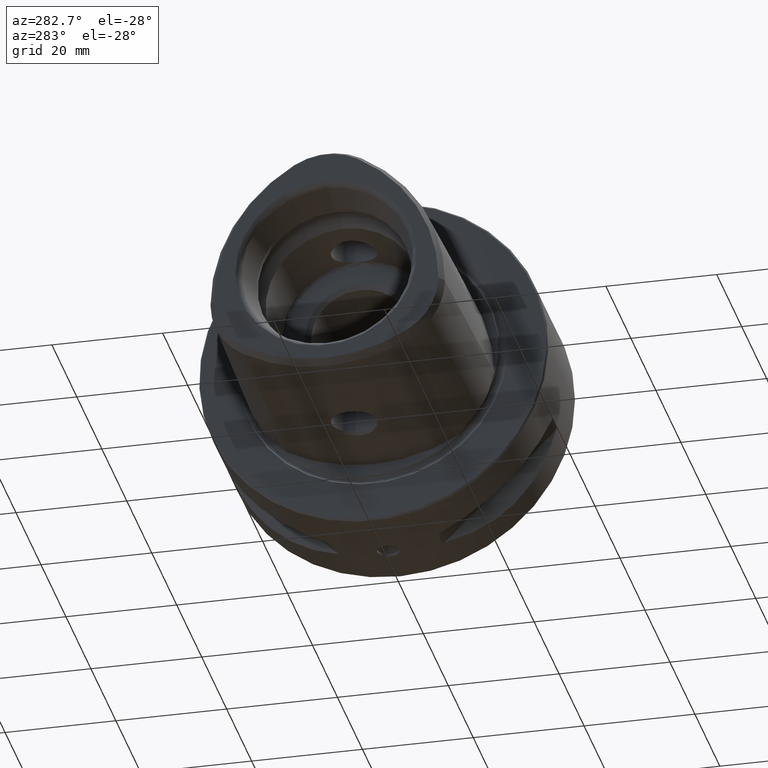
[diagram: clean part render]
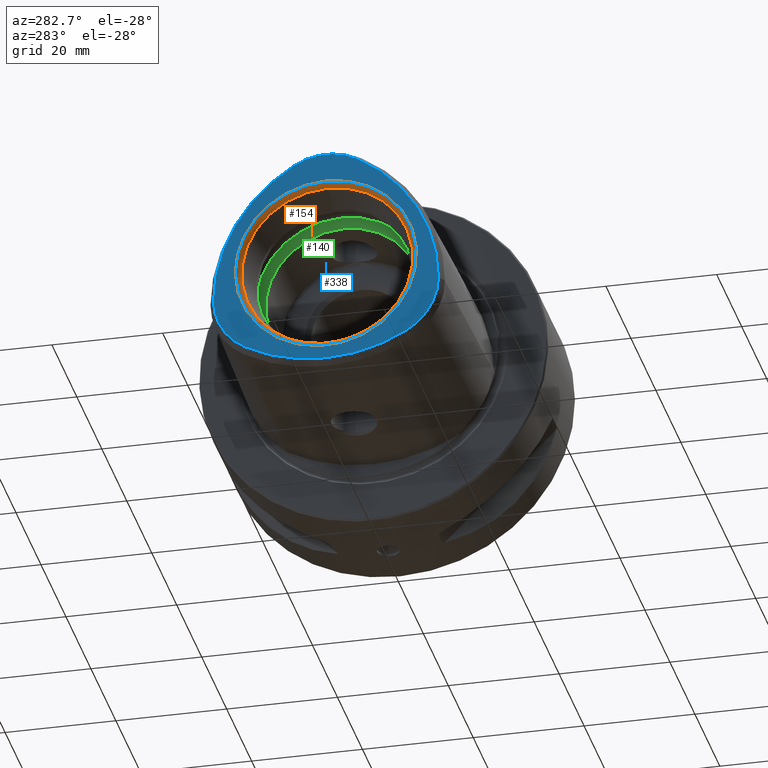
[diagram: same view with three faces highlighted in distinct colors, each labeled with its STEP entity id]
A machine part, auxiliary view with three faces highlighted in distinct colors.
Their STEP definitions:

[orange] entity #154 — the highlighted toroidal blend (fillet) surface has major radius 16.9008 mm and minor (blend) radius 1.5 mm.
#154 = ADVANCED_FACE( '', ( #401, #402 ), #403, .T. );
#401 = FACE_OUTER_BOUND( '', #782, .T. );
#402 = FACE_OUTER_BOUND( '', #783, .T. );
#403 = TOROIDAL_SURFACE( '', #784, 16.9007599187610, 1.50000000000000 );
#782 = EDGE_LOOP( '', ( #1201 ) );
#783 = EDGE_LOOP( '', ( #1202 ) );
#784 = AXIS2_PLACEMENT_3D( '', #1203, #1204, #1205 );
#1201 = ORIENTED_EDGE( '', *, *, #2020, .F. );
#1202 = ORIENTED_EDGE( '', *, *, #2021, .T. );
#1203 = CARTESIAN_POINT( '', ( -36.6000000000000, 0.000000000000000, 0.000000000000000 ) );
#1204 = DIRECTION( '', ( -1.00000000000000, 0.000000000000000, 0.000000000000000 ) );
#1205 = DIRECTION( '', ( 0.000000000000000, 0.000000000000000, 1.00000000000000 ) );
#2020 = EDGE_CURVE( '', #2374, #2374, #2375, .T. );
#2021 = EDGE_CURVE( '', #2376, #2376, #2377, .F. );
#2374 = VERTEX_POINT( '', #2964 );
#2375 = CIRCLE( '', #2965, 15.4518711793273 );
#2376 = VERTEX_POINT( '', #2966 );
#2377 = CIRCLE( '', #2967, 16.3622434380475 );
#2964 = CARTESIAN_POINT( '', ( -36.9882285676538, 0.000000000000000, 15.4518711793273 ) );
#2965 = AXIS2_PLACEMENT_3D( '', #4074, #4075, #4076 );
#2966 = CARTESIAN_POINT( '', ( -38.0000000000000, 16.3622434380475, 0.000000000000000 ) );
#2967 = AXIS2_PLACEMENT_3D( '', #4077, #4078, #4079 );
#4074 = CARTESIAN_POINT( '', ( -36.9882285676538, 0.000000000000000, 0.000000000000000 ) );
#4075 = DIRECTION( '', ( -1.00000000000000, 0.000000000000000, 0.000000000000000 ) );
#4076 = DIRECTION( '', ( 0.000000000000000, 0.000000000000000, 1.00000000000000 ) );
#4077 = CARTESIAN_POINT( '', ( -38.0000000000000, 8.57224447675663E-017, 0.000000000000000 ) );
#4078 = DIRECTION( '', ( 1.00000000000000, -6.12303176911189E-017, 0.000000000000000 ) );
#4079 = DIRECTION( '', ( 6.12303176911189E-017, 1.00000000000000, 0.000000000000000 ) );

[blue] entity #338 — the highlighted planar face has unit normal (-1, 0, 0).
#338 = ADVANCED_FACE( '', ( #722, #723 ), #724, .T. );
#722 = FACE_BOUND( '', #1103, .T. );
#723 = FACE_OUTER_BOUND( '', #1104, .T. );
#724 = PLANE( '', #1105 );
#1103 = EDGE_LOOP( '', ( #1935 ) );
#1104 = EDGE_LOOP( '', ( #1936, #1937, #1938, #1939, #1940, #1941 ) );
#1105 = AXIS2_PLACEMENT_3D( '', #1942, #1943, #1944 );
#1935 = ORIENTED_EDGE( '', *, *, #2021, .F. );
#1936 = ORIENTED_EDGE( '', *, *, #2277, .T. );
#1937 = ORIENTED_EDGE( '', *, *, #2248, .T. );
#1938 = ORIENTED_EDGE( '', *, *, #2029, .T. );
#1939 = ORIENTED_EDGE( '', *, *, #2126, .T. );
#1940 = ORIENTED_EDGE( '', *, *, #1992, .T. );
#1941 = ORIENTED_EDGE( '', *, *, #2267, .T. );
#1942 = CARTESIAN_POINT( '', ( -38.0000000000000, 1.04083408558608E-014, -5.22487113059657 ) );
#1943 = DIRECTION( '', ( -1.00000000000000, 6.12303176911189E-017, 0.000000000000000 ) );
#1944 = DIRECTION( '', ( -6.12303176911189E-017, -1.00000000000000, 0.000000000000000 ) );
#1992 = EDGE_CURVE( '', #2321, #2326, #2328, .T. );
#2021 = EDGE_CURVE( '', #2376, #2376, #2377, .F. );
#2029 = EDGE_CURVE( '', #2382, #2386, #2388, .T. );
#2126 = EDGE_CURVE( '', #2386, #2321, #2536, .T. );
#2248 = EDGE_CURVE( '', #2702, #2382, #2704, .T. );
#2267 = EDGE_CURVE( '', #2326, #2726, #2728, .T. );
#2277 = EDGE_CURVE( '', #2726, #2702, #2738, .T. );
#2321 = VERTEX_POINT( '', #2813 );
#2326 = VERTEX_POINT( '', #2819 );
#2328 = CIRCLE( '', #2822, 11.2442476329409 );
#2376 = VERTEX_POINT( '', #2966 );
#2377 = CIRCLE( '', #2967, 16.3622434380475 );
#2382 = VERTEX_POINT( '', #2972 );
#2386 = VERTEX_POINT( '', #2977 );
#2388 = CIRCLE( '', #2980, 11.2442476329409 );
#2536 = CIRCLE( '', #3425, 29.3437321553266 );
#2702 = VERTEX_POINT( '', #3893 );
#2704 = CIRCLE( '', #3896, 29.3437321553266 );
#2726 = VERTEX_POINT( '', #3987 );
#2728 = CIRCLE( '', #3990, 29.3437321553266 );
#2738 = CIRCLE( '', #4001, 11.2442476329409 );
#2813 = CARTESIAN_POINT( '', ( -38.0000000000000, -5.62212381647047, 20.1875463577625 ) );
#2819 = CARTESIAN_POINT( '', ( -38.0000000000000, 5.62212381647047, 20.1875463577628 ) );
#2822 = AXIS2_PLACEMENT_3D( '', #4039, #4040, #4041 );
#2966 = CARTESIAN_POINT( '', ( -38.0000000000000, 16.3622434380475, 0.000000000000000 ) );
#2967 = AXIS2_PLACEMENT_3D( '', #4077, #4078, #4079 );
#2972 = CARTESIAN_POINT( '', ( -38.0000000000000, -14.6718660776634, -14.9626752271664 ) );
#2977 = CARTESIAN_POINT( '', ( -38.0000000000000, -20.2939898941336, -5.22487113059656 ) );
#2980 = AXIS2_PLACEMENT_3D( '', #4088, #4089, #4090 );
#3425 = AXIS2_PLACEMENT_3D( '', #4183, #4184, #4185 );
#3893 = CARTESIAN_POINT( '', ( -38.0000000000000, 14.6718660776632, -14.9626752271666 ) );
#3896 = AXIS2_PLACEMENT_3D( '', #4309, #4310, #4311 );
#3987 = CARTESIAN_POINT( '', ( -38.0000000000000, 20.2939898941336, -5.22487113059657 ) );
#3990 = AXIS2_PLACEMENT_3D( '', #4332, #4333, #4334 );
#4001 = AXIS2_PLACEMENT_3D( '', #4336, #4337, #4338 );
#4039 = CARTESIAN_POINT( '', ( -38.0000000000000, 5.57249365793643E-015, 10.4497422611929 ) );
#4040 = DIRECTION( '', ( -1.00000000000000, 6.12303176911189E-017, 0.000000000000000 ) );
#4041 = DIRECTION( '', ( -6.12303176911189E-017, -1.00000000000000, 0.000000000000000 ) );
#4077 = CARTESIAN_POINT( '', ( -38.0000000000000, 8.57224447675663E-017, 0.000000000000000 ) );
#4078 = DIRECTION( '', ( 1.00000000000000, -6.12303176911189E-017, 0.000000000000000 ) );
#4079 = DIRECTION( '', ( 6.12303176911189E-017, 1.00000000000000, 0.000000000000000 ) );
#4088 = CARTESIAN_POINT( '', ( -38.0000000000000, -9.04974226119297, -5.22487113059658 ) );
#4089 = DIRECTION( '', ( -1.00000000000000, 6.12303176911189E-017, 0.000000000000000 ) );
#4090 = DIRECTION( '', ( -6.12303176911189E-017, -1.00000000000000, 0.000000000000000 ) );
#4183 = CARTESIAN_POINT( '', ( -38.0000000000000, 9.04974226119300, -5.22487113059656 ) );
#4184 = DIRECTION( '', ( -1.00000000000000, 6.12303176911189E-017, 0.000000000000000 ) );
#4185 = DIRECTION( '', ( -6.12303176911189E-017, -1.00000000000000, 0.000000000000000 ) );
#4309 = CARTESIAN_POINT( '', ( -38.0000000000000, 5.54478528889486E-015, 10.4497422611929 ) );
#4310 = DIRECTION( '', ( -1.00000000000000, 6.12303176911189E-017, 0.000000000000000 ) );
#4311 = DIRECTION( '', ( -6.12303176911189E-017, -1.00000000000000, 0.000000000000000 ) );
#4332 = CARTESIAN_POINT( '', ( -38.0000000000000, -9.04974226119297, -5.22487113059658 ) );
#4333 = DIRECTION( '', ( -1.00000000000000, 6.12303176911189E-017, 0.000000000000000 ) );
#4334 = DIRECTION( '', ( -6.12303176911189E-017, -1.00000000000000, 0.000000000000000 ) );
#4336 = CARTESIAN_POINT( '', ( -38.0000000000000, 9.04974226119300, -5.22487113059656 ) );
#4337 = DIRECTION( '', ( -1.00000000000000, 6.12303176911189E-017, 0.000000000000000 ) );
#4338 = DIRECTION( '', ( -6.12303176911189E-017, -1.00000000000000, 0.000000000000000 ) );

[green] entity #140 — the highlighted conical surface has half-angle 45 deg.
#140 = ADVANCED_FACE( '', ( #378, #379 ), #380, .F. );
#378 = FACE_OUTER_BOUND( '', #759, .T. );
#379 = FACE_BOUND( '', #760, .T. );
#380 = CONICAL_SURFACE( '', #761, 16.0000000000000, 0.785398163397448 );
#759 = EDGE_LOOP( '', ( #1153 ) );
#760 = EDGE_LOOP( '', ( #1154 ) );
#761 = AXIS2_PLACEMENT_3D( '', #1155, #1156, #1157 );
#1153 = ORIENTED_EDGE( '', *, *, #1994, .T. );
#1154 = ORIENTED_EDGE( '', *, *, #1995, .F. );
#1155 = CARTESIAN_POINT( '', ( -26.2000000000000, 0.000000000000000, 3.26662594009375E-015 ) );
#1156 = DIRECTION( '', ( -1.00000000000000, 0.000000000000000, -0.000000000000000 ) );
#1157 = DIRECTION( '', ( 0.000000000000000, 0.000000000000000, 1.00000000000000 ) );
#1994 = EDGE_CURVE( '', #2330, #2330, #2331, .T. );
#1995 = EDGE_CURVE( '', #2332, #2332, #2333, .T. );
#2330 = VERTEX_POINT( '', #2824 );
#2331 = CIRCLE( '', #2825, 15.4142135623731 );
#2332 = VERTEX_POINT( '', #2826 );
#2333 = CIRCLE( '', #2827, 14.0000000000000 );
#2824 = CARTESIAN_POINT( '', ( -25.6142135623731, 0.000000000000000, 15.4142135623731 ) );
#2825 = AXIS2_PLACEMENT_3D( '', #4042, #4043, #4044 );
#2826 = CARTESIAN_POINT( '', ( -24.2000000000000, 0.000000000000000, 14.0000000000000 ) );
#2827 = AXIS2_PLACEMENT_3D( '', #4045, #4046, #4047 );
#4042 = CARTESIAN_POINT( '', ( -25.6142135623731, 0.000000000000000, 3.26662594009375E-015 ) );
#4043 = DIRECTION( '', ( -1.00000000000000, 0.000000000000000, 0.000000000000000 ) );
#4044 = DIRECTION( '', ( 0.000000000000000, 0.000000000000000, 1.00000000000000 ) );
#4045 = CARTESIAN_POINT( '', ( -24.2000000000000, 0.000000000000000, 3.26662594009375E-015 ) );
#4046 = DIRECTION( '', ( -1.00000000000000, 0.000000000000000, 0.000000000000000 ) );
#4047 = DIRECTION( '', ( 0.000000000000000, 0.000000000000000, 1.00000000000000 ) );